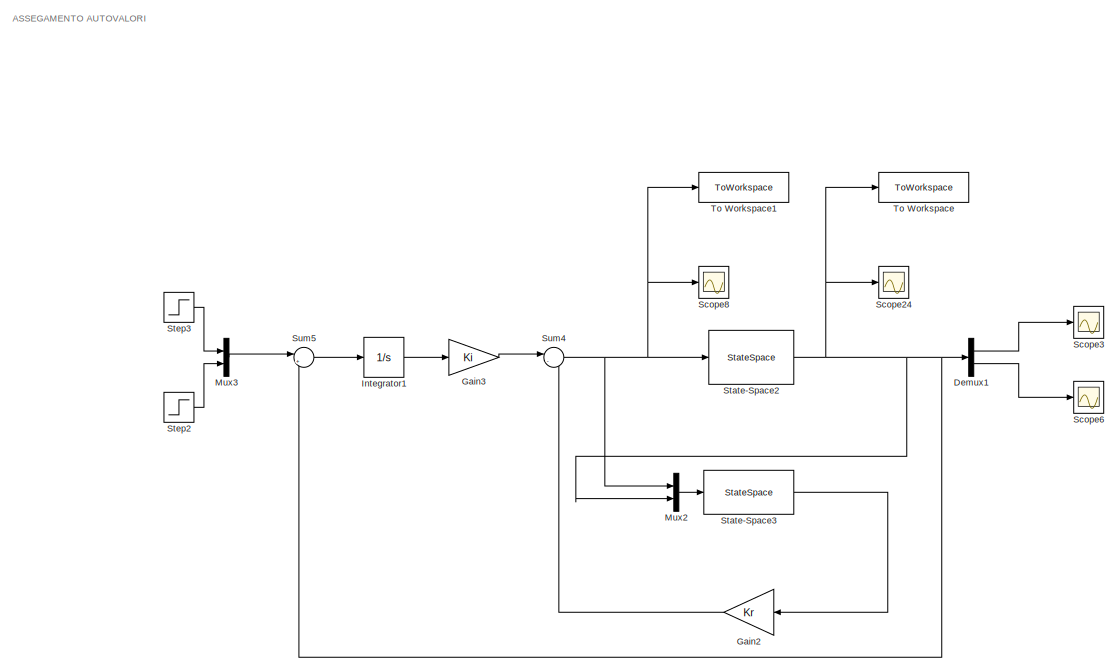
[diagram: root canvas - part 1/7, top left region]
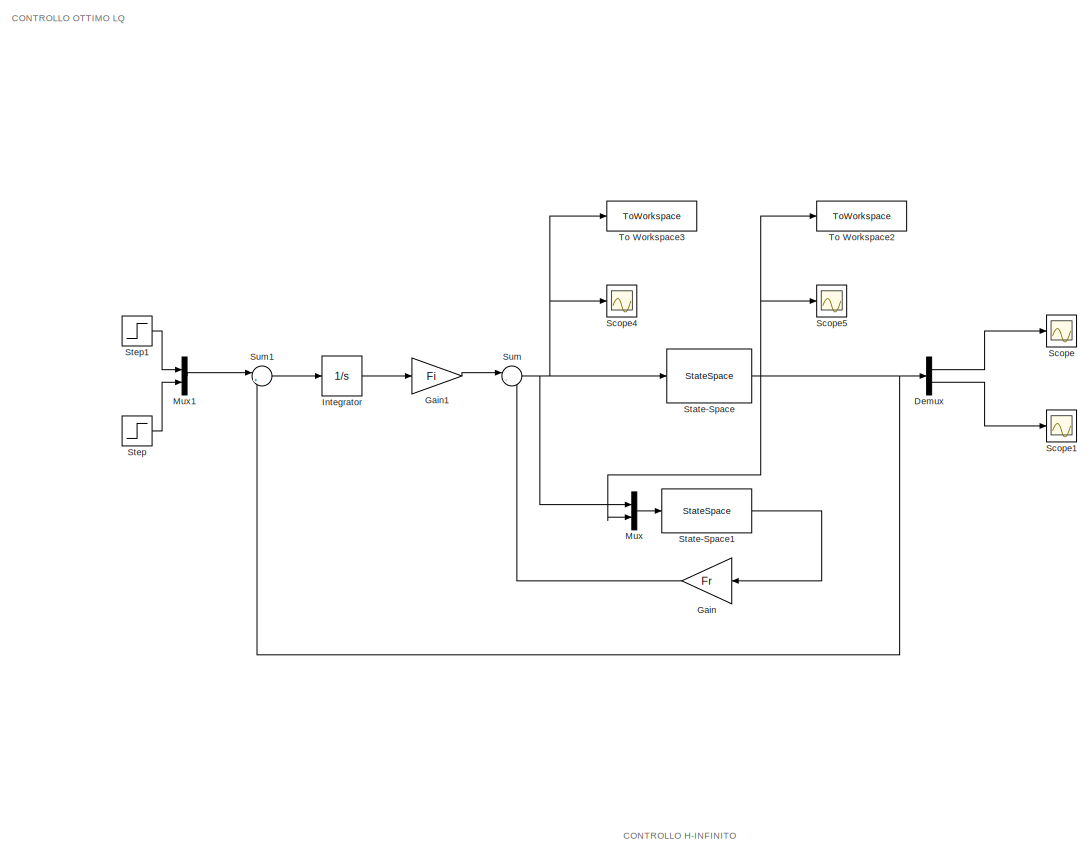
[diagram: root canvas - part 2/7, top center region]
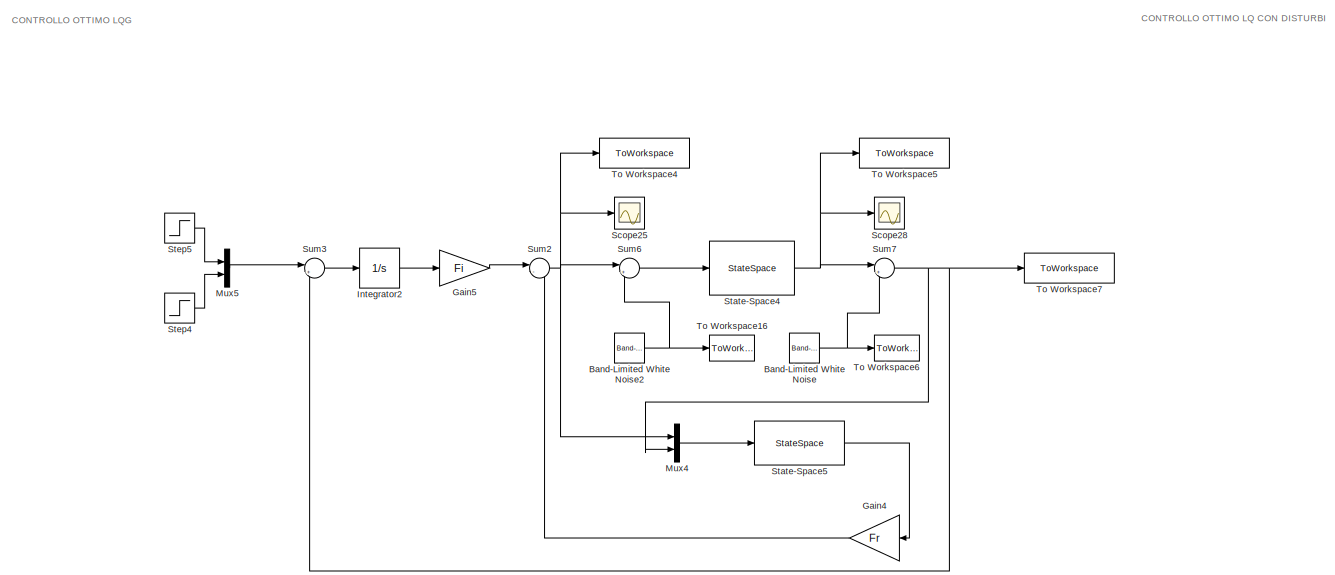
[diagram: root canvas - part 3/7, middle left region]
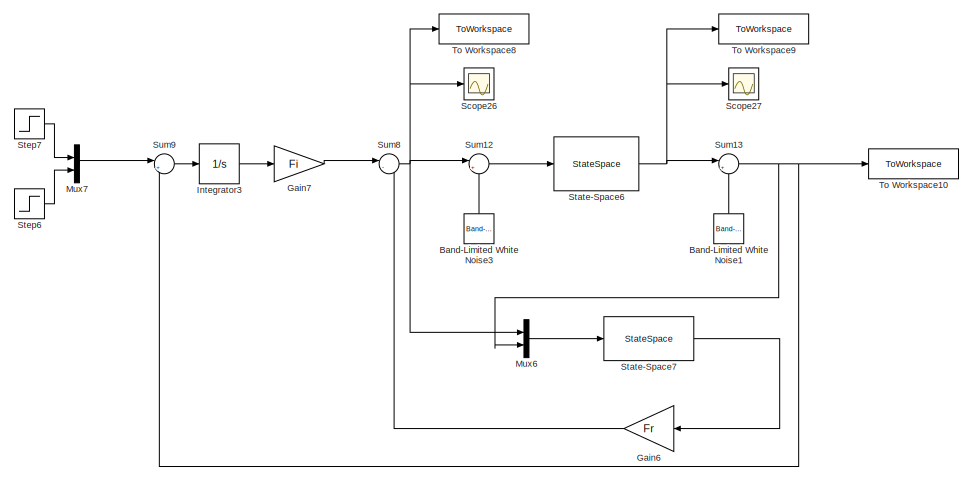
[diagram: root canvas - part 4/7, central region]
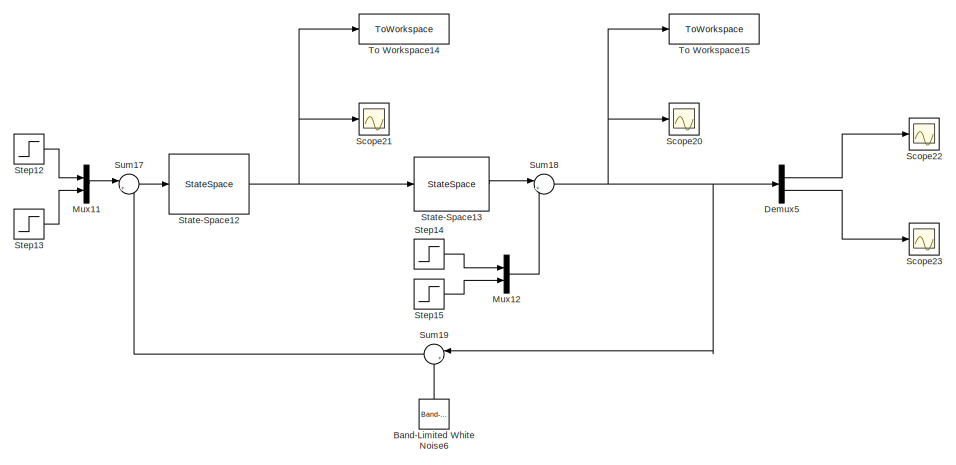
[diagram: root canvas - part 5/7, middle right region]
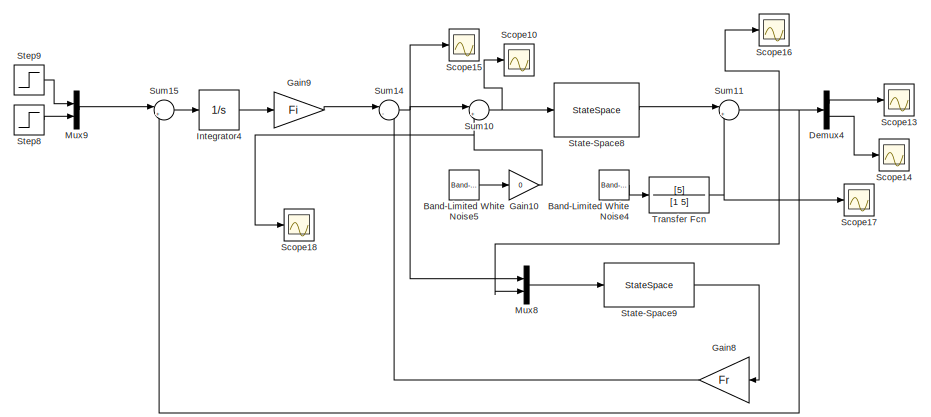
[diagram: root canvas - part 6/7, bottom left region]
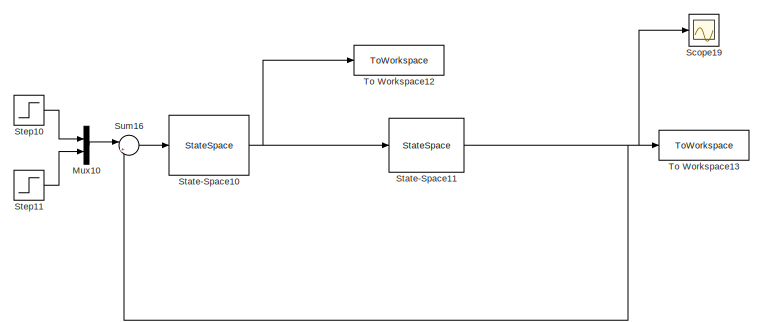
[diagram: root canvas - part 7/7, bottom center region]
MODEL slx_53e05cfa25aa
KIND model
CONFIG AbsTol = auto
CONFIG EnableMultiTasking = off
CONFIG FixedStep = auto
CONFIG MaxStep = auto
CONFIG MinStep = auto
CONFIG RelTol = 1e-3
CONFIG SampleTimeConstraint = Unconstrained
CONFIG SolverName = VariableStepAuto
CONFIG StartTime = 0.0
CONFIG StopTime = 50
BLOCK [Reference] Band-Limited White Noise  REF=simulink/Sources/Band-Limited
White Noise
  SourceBlock = simulink/Sources/Band-Limited\nWhite Noise
  SourceType = Band-Limited White Noise.
BLOCK [Reference] Band-Limited White Noise1  REF=simulink/Sources/Band-Limited
White Noise
  NameLocation = right
  SourceBlock = simulink/Sources/Band-Limited\nWhite Noise
  SourceType = Band-Limited White Noise.
BLOCK [Reference] Band-Limited White Noise2  REF=simulink/Sources/Band-Limited
White Noise
  SourceBlock = simulink/Sources/Band-Limited\nWhite Noise
  SourceType = Band-Limited White Noise.
BLOCK [Reference] Band-Limited White Noise3  REF=simulink/Sources/Band-Limited
White Noise
  NameLocation = right
  SourceBlock = simulink/Sources/Band-Limited\nWhite Noise
  SourceType = Band-Limited White Noise.
BLOCK [Reference] Band-Limited White Noise4  REF=simulink/Sources/Band-Limited
White Noise
  Commented = on
  SourceBlock = simulink/Sources/Band-Limited\nWhite Noise
  SourceType = Band-Limited White Noise.
BLOCK [Reference] Band-Limited White Noise5  REF=simulink/Sources/Band-Limited
White Noise
  Commented = on
  SourceBlock = simulink/Sources/Band-Limited\nWhite Noise
  SourceType = Band-Limited White Noise.
BLOCK [Reference] Band-Limited White Noise6  REF=simulink/Sources/Band-Limited
White Noise
  NameLocation = right
  SourceBlock = simulink/Sources/Band-Limited\nWhite Noise
  SourceType = Band-Limited White Noise.
BLOCK [Demux] Demux
  Outputs = 2
BLOCK [Demux] Demux1
  Outputs = 2
BLOCK [Demux] Demux4
  Commented = on
  Outputs = 2
BLOCK [Demux] Demux5
  Outputs = 2
BLOCK [Gain] Gain
  Gain = Fr
  Multiplication = Matrix(K*u)
  NameLocation = top
BLOCK [Gain] Gain1
  Gain = Fi
  Multiplication = Matrix(K*u)
BLOCK [Gain] Gain10
  Commented = on
  Gain = 0
BLOCK [Gain] Gain2
  Gain = Kr
  Multiplication = Matrix(K*u)
  NameLocation = top
BLOCK [Gain] Gain3
  Gain = Ki
  Multiplication = Matrix(K*u)
BLOCK [Gain] Gain4
  Gain = Fr
  Multiplication = Matrix(K*u)
  NameLocation = top
BLOCK [Gain] Gain5
  Gain = Fi
  Multiplication = Matrix(K*u)
BLOCK [Gain] Gain6
  Gain = Fr
  Multiplication = Matrix(K*u)
  NameLocation = top
BLOCK [Gain] Gain7
  Gain = Fi
  Multiplication = Matrix(K*u)
BLOCK [Gain] Gain8
  Commented = on
  Gain = Fr
  Multiplication = Matrix(K*u)
  NameLocation = top
BLOCK [Gain] Gain9
  Commented = on
  Gain = Fi
  Multiplication = Matrix(K*u)
BLOCK [Integrator] Integrator
BLOCK [Integrator] Integrator1
BLOCK [Integrator] Integrator2
BLOCK [Integrator] Integrator3
BLOCK [Integrator] Integrator4
  Commented = on
BLOCK [Mux] Mux
  DisplayOption = bar
  Inputs = 2
BLOCK [Mux] Mux1
  DisplayOption = bar
  Inputs = 2
BLOCK [Mux] Mux10
  Commented = on
  DisplayOption = bar
  Inputs = 2
BLOCK [Mux] Mux11
  DisplayOption = bar
  Inputs = 2
BLOCK [Mux] Mux12
  DisplayOption = bar
  Inputs = 2
BLOCK [Mux] Mux2
  DisplayOption = bar
  Inputs = 2
BLOCK [Mux] Mux3
  DisplayOption = bar
  Inputs = 2
BLOCK [Mux] Mux4
  DisplayOption = bar
  Inputs = 2
BLOCK [Mux] Mux5
  DisplayOption = bar
  Inputs = 2
BLOCK [Mux] Mux6
  DisplayOption = bar
  Inputs = 2
BLOCK [Mux] Mux7
  DisplayOption = bar
  Inputs = 2
BLOCK [Mux] Mux8
  Commented = on
  DisplayOption = bar
  Inputs = 2
BLOCK [Mux] Mux9
  Commented = on
  DisplayOption = bar
  Inputs = 2
BLOCK [Scope] Scope
  Floating = off
  NumInputPorts = 1
  ScopeSpecificationString = Simulink.scopes.TimeScopeBlockCfg('CurrentConfiguration', extmgr.ConfigurationSet(extmgr.Configuration('Core','General UI',true),extmgr.Configuration('Core','Source UI',true),extmgr.Configuration('Sources','WiredSimulink',true,'DataLoggingVariableName','ScopeData1'),extmgr.Configuration('Visuals','Time Domain',true,'SerializedDisplays',{struct('MinYLimReal','-0.625','MaxYLimReal','5.62496','YLabel...<+1448ch>
BLOCK [Scope] Scope1
  Floating = off
  NumInputPorts = 1
  ScopeSpecificationString = Simulink.scopes.TimeScopeBlockCfg('CurrentConfiguration', extmgr.ConfigurationSet(extmgr.Configuration('Core','General UI',true),extmgr.Configuration('Core','Source UI',true),extmgr.Configuration('Sources','WiredSimulink',true,'DataLoggingVariableName','ScopeData2'),extmgr.Configuration('Visuals','Time Domain',true,'SerializedDisplays',{struct('MinYLimReal','3.33872','MaxYLimReal','3.63728','YLabe...<+1425ch>
BLOCK [Scope] Scope10
  Commented = on
  Floating = off
  NumInputPorts = 1
  ScopeSpecificationString = Simulink.scopes.TimeScopeBlockCfg('CurrentConfiguration', extmgr.ConfigurationSet(extmgr.Configuration('Core','General UI',true),extmgr.Configuration('Core','Source UI',true),extmgr.Configuration('Sources','WiredSimulink',true,'DataLoggingVariableName','ScopeData1'),extmgr.Configuration('Visuals','Time Domain',true,'SerializedDisplays',{struct('MinYLimReal','-8.84894','MaxYLimReal','12.87312','YLa...<+1568ch>
BLOCK [Scope] Scope13
  Commented = on
  Floating = off
  NumInputPorts = 1
  ScopeSpecificationString = Simulink.scopes.TimeScopeBlockCfg('CurrentConfiguration', extmgr.ConfigurationSet(extmgr.Configuration('Core','General UI',true),extmgr.Configuration('Core','Source UI',true),extmgr.Configuration('Sources','WiredSimulink',true,'DataLoggingVariableName','ScopeData4'),extmgr.Configuration('Visuals','Time Domain',true,'SerializedDisplays',{struct('MinYLimReal','-0.19802','MaxYLimReal','1.78217','YLab...<+1542ch>
BLOCK [Scope] Scope14
  Commented = on
  Floating = off
  NumInputPorts = 1
  ScopeSpecificationString = Simulink.scopes.TimeScopeBlockCfg('CurrentConfiguration', extmgr.ConfigurationSet(extmgr.Configuration('Core','General UI',true),extmgr.Configuration('Core','Source UI',true),extmgr.Configuration('Sources','WiredSimulink',true,'DataLoggingVariableName','ScopeData5'),extmgr.Configuration('Visuals','Time Domain',true,'SerializedDisplays',{struct('MinYLimReal','-0.40378','MaxYLimReal','2.60834','YLab...<+1530ch>
BLOCK [Scope] Scope15
  Commented = on
  Floating = off
  NumInputPorts = 1
  ScopeSpecificationString = Simulink.scopes.TimeScopeBlockCfg('CurrentConfiguration', extmgr.ConfigurationSet(extmgr.Configuration('Core','General UI',true),extmgr.Configuration('Core','Source UI',true),extmgr.Configuration('Sources','WiredSimulink',true,'DataLoggingVariableName','ScopeData6'),extmgr.Configuration('Visuals','Time Domain',true,'SerializedDisplays',{struct('MinYLimReal','-13.97108','MaxYLimReal','19.06142','YL...<+1568ch>
BLOCK [Scope] Scope16
  Commented = on
  Floating = off
  NumInputPorts = 1
  ScopeSpecificationString = Simulink.scopes.TimeScopeBlockCfg('CurrentConfiguration', extmgr.ConfigurationSet(extmgr.Configuration('Core','General UI',true),extmgr.Configuration('Core','Source UI',true),extmgr.Configuration('Sources','WiredSimulink',true,'DataLoggingVariableName','ScopeData7'),extmgr.Configuration('Visuals','Time Domain',true,'SerializedDisplays',{struct('MinYLimReal','-0.36443','MaxYLimReal','2.54637','YLab...<+1552ch>
BLOCK [Scope] Scope17
  Commented = on
  Floating = off
  NumInputPorts = 1
  ScopeSpecificationString = Simulink.scopes.TimeScopeBlockCfg('CurrentConfiguration', extmgr.ConfigurationSet(extmgr.Configuration('Core','General UI',true),extmgr.Configuration('Core','Source UI',true),extmgr.Configuration('Sources','WiredSimulink',true,'DataLoggingVariableName','ScopeData8'),extmgr.Configuration('Visuals','Time Domain',true,'SerializedDisplays',{struct('MinYLimReal','-0.01222','MaxYLimReal','0.01161','YLab...<+1502ch>
BLOCK [Scope] Scope18
  Commented = on
  Floating = off
  NumInputPorts = 1
  ScopeSpecificationString = Simulink.scopes.TimeScopeBlockCfg('CurrentConfiguration', extmgr.ConfigurationSet(extmgr.Configuration('Core','General UI',true),extmgr.Configuration('Core','Source UI',true),extmgr.Configuration('Sources','WiredSimulink',true,'DataLoggingVariableName','ScopeData9'),extmgr.Configuration('Visuals','Time Domain',true,'SerializedDisplays',{struct('MinYLimReal','-1.00000','MaxYLimReal','1.00000','YLab...<+1407ch>
BLOCK [Scope] Scope19
  Commented = on
  Floating = off
  NumInputPorts = 1
  ScopeSpecificationString = Simulink.scopes.TimeScopeBlockCfg('CurrentConfiguration', extmgr.ConfigurationSet(extmgr.Configuration('Core','General UI',true),extmgr.Configuration('Core','Source UI',true),extmgr.Configuration('Sources','WiredSimulink',true,'DataLoggingVariableName','ScopeData12'),extmgr.Configuration('Visuals','Time Domain',true,'SerializedDisplays',{struct('MinYLimReal','-0.31105','MaxYLimReal','2.79945','YLa...<+1435ch>
BLOCK [Scope] Scope20
  Floating = off
  NumInputPorts = 1
  ScopeSpecificationString = Simulink.scopes.TimeScopeBlockCfg('CurrentConfiguration', extmgr.ConfigurationSet(extmgr.Configuration('Core','General UI',true),extmgr.Configuration('Core','Source UI',true),extmgr.Configuration('Sources','WiredSimulink',true,'DataLoggingVariableName','ScopeData13'),extmgr.Configuration('Visuals','Time Domain',true,'SerializedDisplays',{struct('MinYLimReal','0.24895','MaxYLimReal','2.75948','YLab...<+1423ch>
BLOCK [Scope] Scope21
  Floating = off
  NumInputPorts = 1
  ScopeSpecificationString = Simulink.scopes.TimeScopeBlockCfg('CurrentConfiguration', extmgr.ConfigurationSet(extmgr.Configuration('Core','General UI',true),extmgr.Configuration('Core','Source UI',true),extmgr.Configuration('Sources','WiredSimulink',true,'DataLoggingVariableName','ScopeData14'),extmgr.Configuration('Visuals','Time Domain',true,'SerializedDisplays',{struct('MinYLimReal','-9.69458','MaxYLimReal','21.46311','YL...<+1397ch>
BLOCK [Scope] Scope22
  Floating = off
  NumInputPorts = 1
  ScopeSpecificationString = Simulink.scopes.TimeScopeBlockCfg('CurrentConfiguration', extmgr.ConfigurationSet(extmgr.Configuration('Core','General UI',true),extmgr.Configuration('Core','Source UI',true),extmgr.Configuration('Sources','WiredSimulink',true,'DataLoggingVariableName','ScopeData15'),extmgr.Configuration('Visuals','Time Domain',true,'SerializedDisplays',{struct('MinYLimReal','0.30832','MaxYLimReal','2.22514','YLab...<+1366ch>
BLOCK [Scope] Scope23
  Floating = off
  NumInputPorts = 1
  ScopeSpecificationString = Simulink.scopes.TimeScopeBlockCfg('CurrentConfiguration', extmgr.ConfigurationSet(extmgr.Configuration('Core','General UI',true),extmgr.Configuration('Core','Source UI',true),extmgr.Configuration('Sources','WiredSimulink',true,'DataLoggingVariableName','ScopeData16'),extmgr.Configuration('Visuals','Time Domain',true,'SerializedDisplays',{struct('MinYLimReal','2.38569','MaxYLimReal','2.52166','YLab...<+1385ch>
BLOCK [Scope] Scope24
  Floating = off
  NumInputPorts = 1
  ScopeSpecificationString = Simulink.scopes.TimeScopeBlockCfg('CurrentConfiguration', extmgr.ConfigurationSet(extmgr.Configuration('Core','General UI',true),extmgr.Configuration('Core','Source UI',true),extmgr.Configuration('Sources','WiredSimulink',true,'DataLoggingVariableName','ScopeData17'),extmgr.Configuration('Visuals','Time Domain',true,'SerializedDisplays',{struct('MinYLimReal','-1.1979','MaxYLimReal','3.49413','YLab...<+1450ch>
BLOCK [Scope] Scope25
  Floating = off
  NumInputPorts = 1
  ScopeSpecificationString = Simulink.scopes.TimeScopeBlockCfg('CurrentConfiguration', extmgr.ConfigurationSet(extmgr.Configuration('Core','General UI',true),extmgr.Configuration('Core','Source UI',true),extmgr.Configuration('Sources','WiredSimulink',true,'DataLoggingVariableName','ScopeData18'),extmgr.Configuration('Visuals','Time Domain',true,'SerializedDisplays',{struct('MinYLimReal','-1.64827','MaxYLimReal','3.8808','YLab...<+1538ch>
BLOCK [Scope] Scope26
  Floating = off
  NumInputPorts = 1
  ScopeSpecificationString = Simulink.scopes.TimeScopeBlockCfg('CurrentConfiguration', extmgr.ConfigurationSet(extmgr.Configuration('Core','General UI',true),extmgr.Configuration('Core','Source UI',true),extmgr.Configuration('Sources','WiredSimulink',true,'DataLoggingVariableName','ScopeData19'),extmgr.Configuration('Visuals','Time Domain',true,'SerializedDisplays',{struct('MinYLimReal','-1.64827','MaxYLimReal','3.8808','YLab...<+1538ch>
BLOCK [Scope] Scope27
  Floating = off
  NumInputPorts = 1
  ScopeSpecificationString = Simulink.scopes.TimeScopeBlockCfg('CurrentConfiguration', extmgr.ConfigurationSet(extmgr.Configuration('Core','General UI',true),extmgr.Configuration('Core','Source UI',true),extmgr.Configuration('Sources','WiredSimulink',true,'DataLoggingVariableName','ScopeData20'),extmgr.Configuration('Visuals','Time Domain',true,'SerializedDisplays',{struct('MinYLimReal','-1.64827','MaxYLimReal','3.8808','YLab...<+1473ch>
BLOCK [Scope] Scope28
  Floating = off
  NumInputPorts = 1
  ScopeSpecificationString = Simulink.scopes.TimeScopeBlockCfg('CurrentConfiguration', extmgr.ConfigurationSet(extmgr.Configuration('Core','General UI',true),extmgr.Configuration('Core','Source UI',true),extmgr.Configuration('Sources','WiredSimulink',true,'DataLoggingVariableName','ScopeData1'),extmgr.Configuration('Visuals','Time Domain',true,'SerializedDisplays',{struct('MinYLimReal','-0.31395','MaxYLimReal','2.82552','YLab...<+1421ch>
BLOCK [Scope] Scope3
  Floating = off
  NumInputPorts = 1
  ScopeSpecificationString = Simulink.scopes.TimeScopeBlockCfg('CurrentConfiguration', extmgr.ConfigurationSet(extmgr.Configuration('Core','General UI',true),extmgr.Configuration('Core','Source UI',true),extmgr.Configuration('Sources','WiredSimulink',true,'DataLoggingVariableName','ScopeData1'),extmgr.Configuration('Visuals','Time Domain',true,'SerializedDisplays',{struct('MinYLimReal','-0.30012','MaxYLimReal','2.70104','YLab...<+1440ch>
BLOCK [Scope] Scope4
  Floating = off
  NumInputPorts = 1
  ScopeSpecificationString = Simulink.scopes.TimeScopeBlockCfg('CurrentConfiguration', extmgr.ConfigurationSet(extmgr.Configuration('Core','General UI',true),extmgr.Configuration('Core','Source UI',true),extmgr.Configuration('Sources','WiredSimulink',true,'DataLoggingVariableName','ScopeData4'),extmgr.Configuration('Visuals','Time Domain',true,'SerializedDisplays',{struct('MinYLimReal','-15.16512','MaxYLimReal','25.95571','YL...<+1430ch>
BLOCK [Scope] Scope5
  Floating = off
  NumInputPorts = 1
  ScopeSpecificationString = Simulink.scopes.TimeScopeBlockCfg('CurrentConfiguration', extmgr.ConfigurationSet(extmgr.Configuration('Core','General UI',true),extmgr.Configuration('Core','Source UI',true),extmgr.Configuration('Sources','WiredSimulink',true,'DataLoggingVariableName','ScopeData5'),extmgr.Configuration('Visuals','Time Domain',true,'SerializedDisplays',{struct('MinYLimReal','-0.33206','MaxYLimReal','2.98851','YLab...<+1449ch>
BLOCK [Scope] Scope6
  Floating = off
  NumInputPorts = 1
  ScopeSpecificationString = Simulink.scopes.TimeScopeBlockCfg('CurrentConfiguration', extmgr.ConfigurationSet(extmgr.Configuration('Core','General UI',true),extmgr.Configuration('Core','Source UI',true),extmgr.Configuration('Sources','WiredSimulink',true,'DataLoggingVariableName','ScopeData2'),extmgr.Configuration('Visuals','Time Domain',true,'SerializedDisplays',{struct('MinYLimReal','-0.34713','MaxYLimReal','3.12413','YLab...<+1444ch>
BLOCK [Scope] Scope8
  Floating = off
  NumInputPorts = 1
  ScopeSpecificationString = Simulink.scopes.TimeScopeBlockCfg('CurrentConfiguration', extmgr.ConfigurationSet(extmgr.Configuration('Core','General UI',true),extmgr.Configuration('Core','Source UI',true),extmgr.Configuration('Sources','WiredSimulink',true,'DataLoggingVariableName','ScopeData3'),extmgr.Configuration('Visuals','Time Domain',true,'SerializedDisplays',{struct('MinYLimReal','-6362.51074','MaxYLimReal','5378.61327'...<+1473ch>
BLOCK [StateSpace] State-Space
  A = A
  B = B
  C = C
  D = D
  InitialCondition = 0
  ParameterTunability = Unconstrained
BLOCK [StateSpace] State-Space1
  A = A_obs
  B = B_obs
  C = C_obs
  D = D_obs
  InitialCondition = 0
BLOCK [StateSpace] State-Space10
  A = Ar
  B = Br
  C = Cr
  Commented = on
  D = Dr
  InitialCondition = 0
BLOCK [StateSpace] State-Space11
  A = A
  B = B
  C = C
  Commented = on
  D = D
  InitialCondition = 0
BLOCK [StateSpace] State-Space12
  A = Ar
  B = Br
  C = Cr
  D = Dr
  InitialCondition = 0
BLOCK [StateSpace] State-Space13
  A = A
  B = B
  C = C
  D = D
  InitialCondition = 0
BLOCK [StateSpace] State-Space2
  A = A
  B = B
  C = C
  D = D
  InitialCondition = 0
  ParameterTunability = Unconstrained
BLOCK [StateSpace] State-Space3
  A = A_obs
  B = B_obs
  C = C_obs
  D = D_obs
  InitialCondition = 0
BLOCK [StateSpace] State-Space4
  A = A
  B = B
  C = C
  D = D
  InitialCondition = 0
  ParameterTunability = Unconstrained
BLOCK [StateSpace] State-Space5
  A = A_Kal
  B = B_Kal
  C = C_Kal
  D = D_Kal
  InitialCondition = 0
BLOCK [StateSpace] State-Space6
  A = A
  B = B
  C = C
  D = D
  InitialCondition = 0
  ParameterTunability = Unconstrained
BLOCK [StateSpace] State-Space7
  A = A_obs
  B = B_obs
  C = C_obs
  D = D_obs
  InitialCondition = 0
BLOCK [StateSpace] State-Space8
  A = A
  B = B
  C = C
  Commented = on
  D = D
  InitialCondition = 0
  ParameterTunability = Unconstrained
BLOCK [StateSpace] State-Space9
  A = A_obs
  B = B_obs
  C = C_obs
  Commented = on
  D = D_obs
  InitialCondition = 0
BLOCK [Step] Step
  After = 2.5
  SampleTime = 0
  Time = 0
BLOCK [Step] Step1
  After = 2
  SampleTime = 0
  Time = 0
BLOCK [Step] Step10
  After = 2
  Commented = on
  SampleTime = 0
  Time = 0
BLOCK [Step] Step11
  After = 2.5
  Commented = on
  SampleTime = 0
  Time = 0
BLOCK [Step] Step12
  After = 2
  SampleTime = 0
  Time = 0
BLOCK [Step] Step13
  After = 2.5
  SampleTime = 0
  Time = 0
BLOCK [Step] Step14
  After = 0.5
  SampleTime = 0
  Time = 0
BLOCK [Step] Step15
  After = 0.5
  SampleTime = 0
  Time = 0
BLOCK [Step] Step2
  After = 2.5
  SampleTime = 0
  Time = 0
BLOCK [Step] Step3
  After = 2
  SampleTime = 0
  Time = 0
BLOCK [Step] Step4
  After = 2.5
  SampleTime = 0
  Time = 0
BLOCK [Step] Step5
  After = 2
  SampleTime = 0
  Time = 0
BLOCK [Step] Step6
  After = 2.5
  SampleTime = 0
  Time = 0
BLOCK [Step] Step7
  After = 2
  SampleTime = 0
  Time = 0
BLOCK [Step] Step8
  After = 2.5
  Commented = on
  SampleTime = 0
  Time = 0
BLOCK [Step] Step9
  After = 2
  Commented = on
  SampleTime = 0
  Time = 0
BLOCK [Sum] Sum
  Inputs = |--
BLOCK [Sum] Sum1
  Inputs = |+-
BLOCK [Sum] Sum10
  Commented = on
  Inputs = |++
BLOCK [Sum] Sum11
  Commented = on
  Inputs = |++
BLOCK [Sum] Sum12
  Inputs = |++
BLOCK [Sum] Sum13
  Inputs = |++
BLOCK [Sum] Sum14
  Commented = on
  Inputs = |--
BLOCK [Sum] Sum15
  Commented = on
  Inputs = |+-
BLOCK [Sum] Sum16
  Commented = on
  Inputs = |+-
BLOCK [Sum] Sum17
  Inputs = |+-
BLOCK [Sum] Sum18
  Inputs = |++
BLOCK [Sum] Sum19
  Inputs = |++
  NameLocation = top
BLOCK [Sum] Sum2
  Inputs = |--
BLOCK [Sum] Sum3
  Inputs = |+-
BLOCK [Sum] Sum4
  Inputs = |--
BLOCK [Sum] Sum5
  Inputs = |+-
BLOCK [Sum] Sum6
  Inputs = |++
BLOCK [Sum] Sum7
  Inputs = |++
BLOCK [Sum] Sum8
  Inputs = |--
BLOCK [Sum] Sum9
  Inputs = |+-
BLOCK [ToWorkspace] To Workspace
  FixptAsFi = on
  MaxDataPoints = inf
  SampleTime = -1
  SaveFormat = Structure With Time
  VariableName = output
BLOCK [ToWorkspace] To Workspace1
  FixptAsFi = on
  MaxDataPoints = inf
  SampleTime = -1
  SaveFormat = Structure With Time
  VariableName = control
BLOCK [ToWorkspace] To Workspace10
  FixptAsFi = on
  MaxDataPoints = inf
  SampleTime = -1
  SaveFormat = Structure With Time
  VariableName = outputLQ_NOISE_N
BLOCK [ToWorkspace] To Workspace12
  Commented = on
  FixptAsFi = on
  MaxDataPoints = inf
  SampleTime = -1
  SaveFormat = Structure With Time
  VariableName = out55
BLOCK [ToWorkspace] To Workspace13
  Commented = on
  FixptAsFi = on
  MaxDataPoints = inf
  SampleTime = -1
  SaveFormat = Structure With Time
  VariableName = out5
BLOCK [ToWorkspace] To Workspace14
  FixptAsFi = on
  MaxDataPoints = inf
  SampleTime = -1
  SaveFormat = Structure With Time
  VariableName = controlH
BLOCK [ToWorkspace] To Workspace15
  FixptAsFi = on
  MaxDataPoints = inf
  SampleTime = -1
  SaveFormat = Structure With Time
  VariableName = outputH
BLOCK [ToWorkspace] To Workspace16
  FixptAsFi = on
  MaxDataPoints = inf
  SampleTime = -1
  SaveFormat = Structure With Time
  VariableName = Du
BLOCK [ToWorkspace] To Workspace2
  FixptAsFi = on
  MaxDataPoints = inf
  SampleTime = -1
  SaveFormat = Structure With Time
  VariableName = outputLQ
BLOCK [ToWorkspace] To Workspace3
  FixptAsFi = on
  MaxDataPoints = inf
  SampleTime = -1
  SaveFormat = Structure With Time
  VariableName = controlLQ
BLOCK [ToWorkspace] To Workspace4
  FixptAsFi = on
  MaxDataPoints = inf
  SampleTime = -1
  SaveFormat = Structure With Time
  VariableName = controlLQG_KAL
BLOCK [ToWorkspace] To Workspace5
  FixptAsFi = on
  MaxDataPoints = inf
  SampleTime = -1
  SaveFormat = Structure With Time
  VariableName = outputLQG_KAL
BLOCK [ToWorkspace] To Workspace6
  FixptAsFi = on
  MaxDataPoints = inf
  SampleTime = -1
  SaveFormat = Structure With Time
  VariableName = Dy
BLOCK [ToWorkspace] To Workspace7
  FixptAsFi = on
  MaxDataPoints = inf
  SampleTime = -1
  SaveFormat = Structure With Time
  VariableName = outputLQG_KAL_N
BLOCK [ToWorkspace] To Workspace8
  FixptAsFi = on
  MaxDataPoints = inf
  SampleTime = -1
  SaveFormat = Structure With Time
  VariableName = controlLQ_NOISE
BLOCK [ToWorkspace] To Workspace9
  FixptAsFi = on
  MaxDataPoints = inf
  SampleTime = -1
  SaveFormat = Structure With Time
  VariableName = outputLQ_NOISE
BLOCK [TransferFcn] Transfer Fcn
  Commented = on
  Denominator = [1 5]
  Numerator = [5]
ANNOTATION (root): ASSEGAMENTO AUTOVALORI
ANNOTATION (root): CONTROLLO H-INFINITO
ANNOTATION (root): CONTROLLO OTTIMO LQ CON DISTURBI
ANNOTATION (root): CONTROLLO OTTIMO LQG
ANNOTATION (root): CONTROLLO OTTIMO LQ
LINE Band-Limited White Noise1:1 -> Sum13:2
NET Band-Limited White Noise2:1 -> Sum6:2, To Workspace16:1
LINE Band-Limited White Noise3:1 -> Sum12:2
LINE Band-Limited White Noise4:1 -> Transfer Fcn:1
LINE Band-Limited White Noise5:1 -> Gain10:1
LINE Band-Limited White Noise6:1 -> Sum19:2
NET Band-Limited White Noise:1 -> Sum7:2, To Workspace6:1
LINE Demux1:1 -> Scope3:1
LINE Demux1:2 -> Scope6:1
LINE Demux4:1 -> Scope13:1
LINE Demux4:2 -> Scope14:1
LINE Demux5:1 -> Scope22:1
LINE Demux5:2 -> Scope23:1
LINE Demux:1 -> Scope:1
LINE Demux:2 -> Scope1:1
NET Gain10:1 -> Scope18:1, Sum10:2
LINE Gain1:1 -> Sum:1
LINE Gain2:1 -> Sum4:2
LINE Gain3:1 -> Sum4:1
LINE Gain4:1 -> Sum2:2
LINE Gain5:1 -> Sum2:1
LINE Gain6:1 -> Sum8:2
LINE Gain7:1 -> Sum8:1
LINE Gain8:1 -> Sum14:2
LINE Gain9:1 -> Sum14:1
LINE Gain:1 -> Sum:2
LINE Integrator1:1 -> Gain3:1
LINE Integrator2:1 -> Gain5:1
LINE Integrator3:1 -> Gain7:1
LINE Integrator4:1 -> Gain9:1
LINE Integrator:1 -> Gain1:1
LINE Mux10:1 -> Sum16:1
LINE Mux11:1 -> Sum17:1
LINE Mux12:1 -> Sum18:2
LINE Mux1:1 -> Sum1:1
LINE Mux2:1 -> State-Space3:1
LINE Mux3:1 -> Sum5:1
LINE Mux4:1 -> State-Space5:1
LINE Mux5:1 -> Sum3:1
LINE Mux6:1 -> State-Space7:1
LINE Mux7:1 -> Sum9:1
LINE Mux8:1 -> State-Space9:1
LINE Mux9:1 -> Sum15:1
LINE Mux:1 -> State-Space1:1
NET State-Space10:1 -> State-Space11:1, To Workspace12:1
NET State-Space11:1 -> Scope19:1, Sum16:2, To Workspace13:1
NET State-Space12:1 -> Scope21:1, State-Space13:1, To Workspace14:1
LINE State-Space13:1 -> Sum18:1
LINE State-Space1:1 -> Gain:1
NET State-Space2:1 -> Demux1:1, Mux2:2, Scope24:1, Sum5:2, To Workspace:1
LINE State-Space3:1 -> Gain2:1
NET State-Space4:1 -> Scope28:1, Sum7:1, To Workspace5:1
LINE State-Space5:1 -> Gain4:1
NET State-Space6:1 -> Scope27:1, Sum13:1, To Workspace9:1
LINE State-Space7:1 -> Gain6:1
LINE State-Space8:1 -> Sum11:1
LINE State-Space9:1 -> Gain8:1
NET State-Space:1 -> Demux:1, Mux:2, Scope5:1, Sum1:2, To Workspace2:1
LINE Step10:1 -> Mux10:1
LINE Step11:1 -> Mux10:2
LINE Step12:1 -> Mux11:1
LINE Step13:1 -> Mux11:2
LINE Step14:1 -> Mux12:1
LINE Step15:1 -> Mux12:2
LINE Step1:1 -> Mux1:1
LINE Step2:1 -> Mux3:2
LINE Step3:1 -> Mux3:1
LINE Step4:1 -> Mux5:2
LINE Step5:1 -> Mux5:1
LINE Step6:1 -> Mux7:2
LINE Step7:1 -> Mux7:1
LINE Step8:1 -> Mux9:2
LINE Step9:1 -> Mux9:1
LINE Step:1 -> Mux1:2
NET Sum10:1 -> Scope10:1, State-Space8:1
NET Sum11:1 -> Demux4:1, Mux8:2, Scope16:1, Sum15:2
LINE Sum12:1 -> State-Space6:1
NET Sum13:1 -> Mux6:2, Sum9:2, To Workspace10:1
NET Sum14:1 -> Mux8:1, Scope15:1, Sum10:1
LINE Sum15:1 -> Integrator4:1
LINE Sum16:1 -> State-Space10:1
LINE Sum17:1 -> State-Space12:1
NET Sum18:1 -> Demux5:1, Scope20:1, Sum19:1, To Workspace15:1
LINE Sum19:1 -> Sum17:2
LINE Sum1:1 -> Integrator:1
NET Sum2:1 -> Mux4:1, Scope25:1, Sum6:1, To Workspace4:1
LINE Sum3:1 -> Integrator2:1
NET Sum4:1 -> Mux2:1, Scope8:1, State-Space2:1, To Workspace1:1
LINE Sum5:1 -> Integrator1:1
LINE Sum6:1 -> State-Space4:1
NET Sum7:1 -> Mux4:2, Sum3:2, To Workspace7:1
NET Sum8:1 -> Mux6:1, Scope26:1, Sum12:1, To Workspace8:1
LINE Sum9:1 -> Integrator3:1
NET Sum:1 -> Mux:1, Scope4:1, State-Space:1, To Workspace3:1
NET Transfer Fcn:1 -> Scope17:1, Sum11:2
note: NET lines group one-source signal fan-out (src -> all destinations, sorted); 1:1 wires keep LINE
